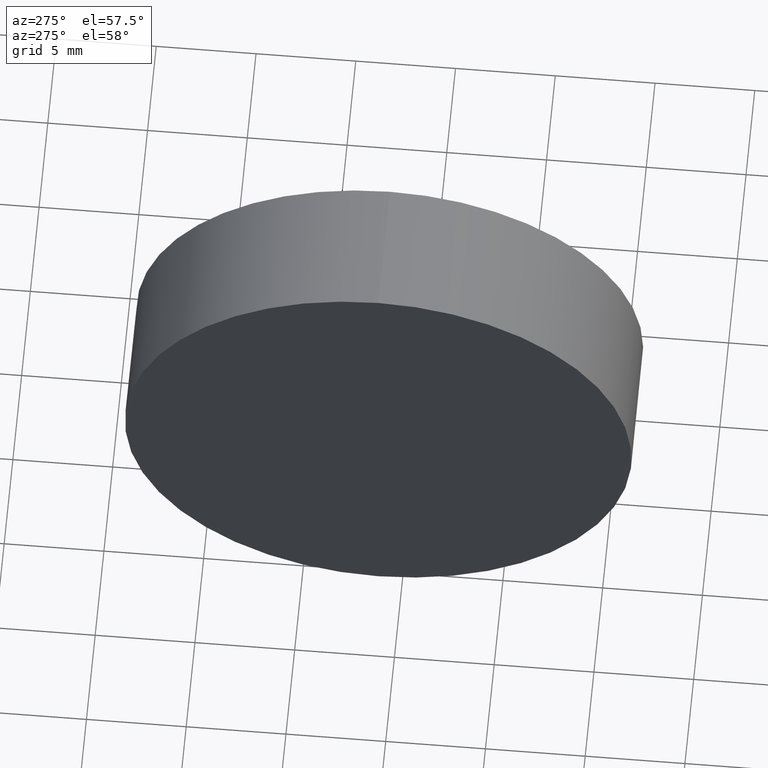
[diagram: clean part render]
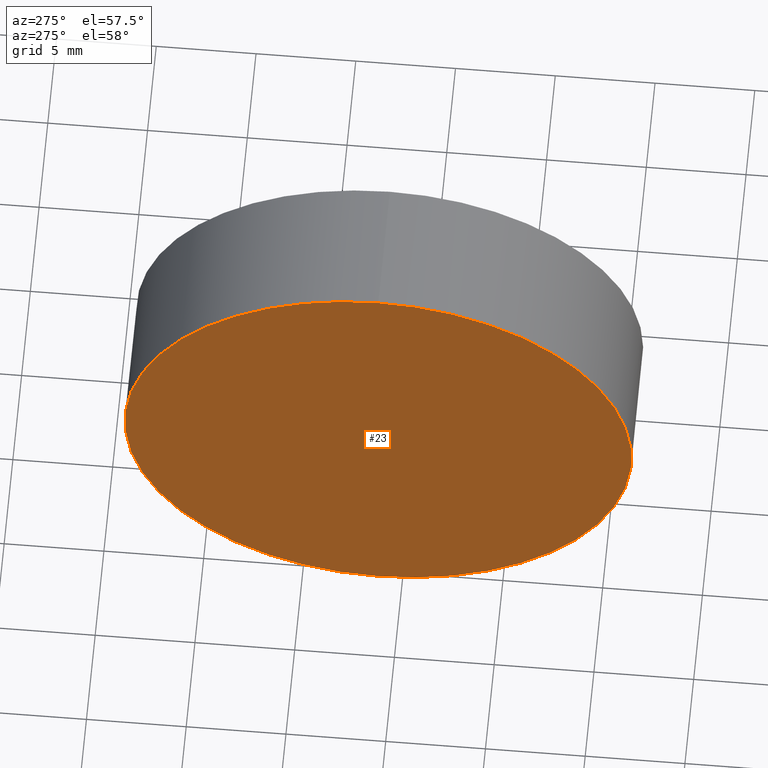
[diagram: same view with one face highlighted and labeled with its STEP entity id]
A machine part, auxiliary view. The second image highlights one B-rep face of the part: STEP entity #23.
In plain terms, the highlighted planar face has unit normal (1, 0, 0).
Its self-contained STEP definition (entity closure, byte-faithful):
#8 = ORIENTED_EDGE ( 'NONE', *, *, #110, .T. ) ;
#20 = CARTESIAN_POINT ( 'NONE',  ( 119.3629307920347200, 71.19398908659370300, 12.70000000000000300 ) ) ;
#23 = ADVANCED_FACE ( 'NONE', ( #178 ), #57, .F. ) ;
#25 = CARTESIAN_POINT ( 'NONE',  ( 119.3629307920347200, 71.19398908659370300, 0.0000000000000000000 ) ) ;
#30 = VERTEX_POINT ( 'NONE', #20 ) ;
#44 = ORIENTED_EDGE ( 'NONE', *, *, #165, .T. ) ;
#53 = CIRCLE ( 'NONE', #153, 12.70000000000000300 ) ;
#57 = PLANE ( 'NONE',  #82 ) ;
#75 = AXIS2_PLACEMENT_3D ( 'NONE', #183, #94, #123 ) ;
#79 = VERTEX_POINT ( 'NONE', #122 ) ;
#82 = AXIS2_PLACEMENT_3D ( 'NONE', #171, #174, #85 ) ;
#85 = DIRECTION ( 'NONE',  ( 0.0000000000000000000, 0.0000000000000000000, -1.000000000000000000 ) ) ;
#94 = DIRECTION ( 'NONE',  ( -1.000000000000000000, -0.0000000000000000000, -0.0000000000000000000 ) ) ;
#109 = EDGE_LOOP ( 'NONE', ( #44, #8 ) ) ;
#110 = EDGE_CURVE ( 'NONE', #79, #30, #169, .T. ) ;
#117 = DIRECTION ( 'NONE',  ( -1.000000000000000000, -0.0000000000000000000, -0.0000000000000000000 ) ) ;
#122 = CARTESIAN_POINT ( 'NONE',  ( 119.3629307920347200, 71.19398908659370300, -12.70000000000000300 ) ) ;
#123 = DIRECTION ( 'NONE',  ( 0.0000000000000000000, 0.0000000000000000000, 1.000000000000000000 ) ) ;
#144 = DIRECTION ( 'NONE',  ( 0.0000000000000000000, 0.0000000000000000000, 1.000000000000000000 ) ) ;
#153 = AXIS2_PLACEMENT_3D ( 'NONE', #25, #117, #144 ) ;
#165 = EDGE_CURVE ( 'NONE', #30, #79, #53, .T. ) ;
#169 = CIRCLE ( 'NONE', #75, 12.70000000000000300 ) ;
#171 = CARTESIAN_POINT ( 'NONE',  ( 119.3629307920347200, 71.19398908659370300, 0.0000000000000000000 ) ) ;
#174 = DIRECTION ( 'NONE',  ( 1.000000000000000000, 0.0000000000000000000, 0.0000000000000000000 ) ) ;
#178 = FACE_OUTER_BOUND ( 'NONE', #109, .T. ) ;
#183 = CARTESIAN_POINT ( 'NONE',  ( 119.3629307920347200, 71.19398908659370300, 0.0000000000000000000 ) ) ;